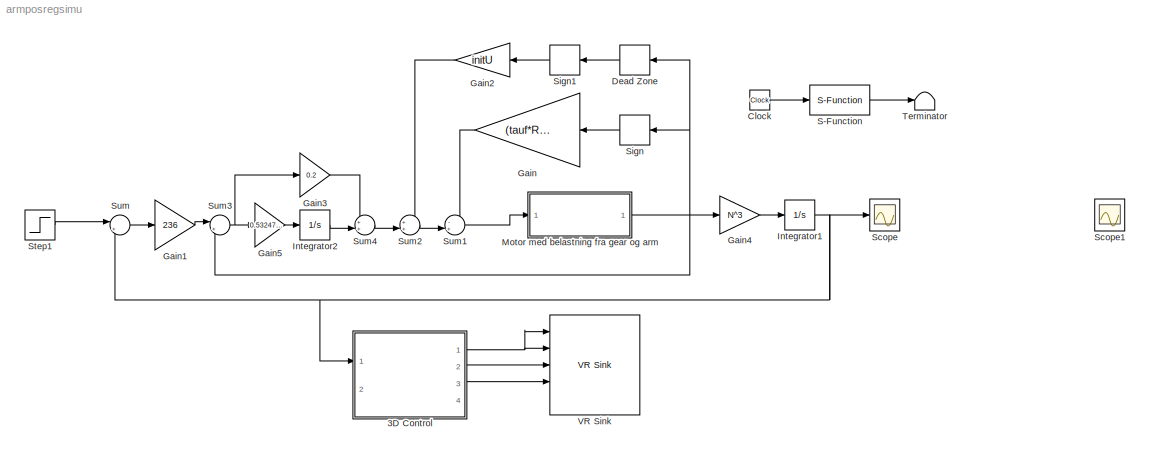
MODEL armposregsimu
KIND model
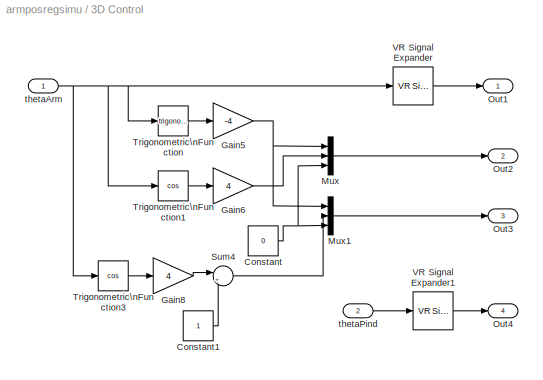
BLOCK [SubSystem] 3D Control
  FunctionWithSeparateData = off
  MaskHideContents = off
  MinAlgLoopOccurrences = off
  Opaque = off
  Ports = [2, 4]
  PropExecContextOutsideSubsystem = off
  RTWSystemCode = Auto
  RequestExecContextInheritance = off
  SID = 1
BLOCK [Constant] 3D Control/Constant
  OutDataType = fixdt(1, 16)
  OutScaling = 2^0
  SID = 4
  Value = 0
BLOCK [Constant] 3D Control/Constant1
  OutDataType = fixdt(1, 16)
  OutScaling = 2^0
  SID = 5
BLOCK [Gain] 3D Control/Gain5
  Gain = -4
  OutDataType = fixdt(1, 16)
  OutDataTypeMode = Inherit via internal rule
  OutDataTypeStr = Inherit: Inherit via internal rule
  OutScaling = 2^0
  ParamDataTypeStr = Inherit: Inherit via internal rule
  ParameterDataType = fixdt(1, 16)
  ParameterDataTypeMode = Inherit via internal rule
  ParameterScaling = 2^0
  SID = 6
  SaturateOnIntegerOverflow = off
BLOCK [Gain] 3D Control/Gain6
  Gain = 4
  OutDataType = fixdt(1, 16)
  OutDataTypeMode = Inherit via internal rule
  OutDataTypeStr = Inherit: Inherit via internal rule
  OutScaling = 2^0
  ParamDataTypeStr = Inherit: Inherit via internal rule
  ParameterDataType = fixdt(1, 16)
  ParameterDataTypeMode = Inherit via internal rule
  ParameterScaling = 2^0
  SID = 7
  SaturateOnIntegerOverflow = off
BLOCK [Gain] 3D Control/Gain8
  Gain = 4
  OutDataType = fixdt(1, 16)
  OutDataTypeMode = Inherit via internal rule
  OutDataTypeStr = Inherit: Inherit via internal rule
  OutScaling = 2^0
  ParamDataTypeStr = Inherit: Inherit via internal rule
  ParameterDataType = fixdt(1, 16)
  ParameterDataTypeMode = Inherit via internal rule
  ParameterScaling = 2^0
  SID = 8
  SaturateOnIntegerOverflow = off
BLOCK [Mux] 3D Control/Mux
  DisplayOption = bar
  Inputs = 3
  Ports = [3, 1]
  SID = 9
BLOCK [Mux] 3D Control/Mux1
  DisplayOption = bar
  Inputs = 3
  Ports = [3, 1]
  SID = 10
BLOCK [Outport] 3D Control/Out1
  IconDisplay = Port number
  OutDataType = fixdt(1, 16)
  OutScaling = 2^0
  SID = 17
BLOCK [Outport] 3D Control/Out2
  IconDisplay = Port number
  OutDataType = fixdt(1, 16)
  OutScaling = 2^0
  Port = 2
  SID = 18
BLOCK [Outport] 3D Control/Out3
  IconDisplay = Port number
  OutDataType = fixdt(1, 16)
  OutScaling = 2^0
  Port = 3
  SID = 19
BLOCK [Outport] 3D Control/Out4
  IconDisplay = Port number
  OutDataType = fixdt(1, 16)
  OutScaling = 2^0
  Port = 4
  SID = 20
BLOCK [Sum] 3D Control/Sum4
  IconShape = round
  InputSameDT = off
  Inputs = |+-
  OutDataType = fixdt(1, 16)
  OutDataTypeMode = Inherit via internal rule
  OutDataTypeStr = Inherit: Inherit via internal rule
  OutScaling = 2^0
  Ports = [2, 1]
  SID = 11
  SaturateOnIntegerOverflow = off
BLOCK [Trigonometry] 3D Control/Trigonometric\nFunction
  Ports = [1, 1]
  SID = 12
BLOCK [Trigonometry] 3D Control/Trigonometric\nFunction1
  Operator = cos
  Ports = [1, 1]
  SID = 13
BLOCK [Trigonometry] 3D Control/Trigonometric\nFunction3
  Operator = cos
  Ports = [1, 1]
  SID = 14
BLOCK [Reference] 3D Control/VR Signal Expander  REF=vrlib/VR Signal Expander
  FunctionWithSeparateData = off
  Ports = [1, 1]
  RTWMemSecDataConstants = Inherit from model
  RTWMemSecDataInternal = Inherit from model
  RTWMemSecDataParameters = Inherit from model
  RTWMemSecFuncExecute = Inherit from model
  RTWMemSecFuncInitTerm = Inherit from model
  SID = 15
  ShowPortLabels = FromPortIcon
  SourceBlock = vrlib/VR Signal Expander
  SourceType = VR Signal Expander
  SystemSampleTime = -1
  outidx = [4]
  outwidth = 4
BLOCK [Reference] 3D Control/VR Signal Expander1  REF=vrlib/VR Signal Expander
  FunctionWithSeparateData = off
  Ports = [1, 1]
  RTWMemSecDataConstants = Inherit from model
  RTWMemSecDataInternal = Inherit from model
  RTWMemSecDataParameters = Inherit from model
  RTWMemSecFuncExecute = Inherit from model
  RTWMemSecFuncInitTerm = Inherit from model
  SID = 16
  ShowPortLabels = FromPortIcon
  SourceBlock = vrlib/VR Signal Expander
  SourceType = VR Signal Expander
  SystemSampleTime = -1
  outidx = [4]
  outwidth = 4
BLOCK [Inport] 3D Control/thetaArm
  IconDisplay = Port number
  OutDataType = fixdt(1, 16)
  OutScaling = 2^0
  SID = 2
BLOCK [Inport] 3D Control/thetaPind
  IconDisplay = Port number
  OutDataType = fixdt(1, 16)
  OutScaling = 2^0
  Port = 2
  SID = 3
BLOCK [Clock] Clock
  Decimation = 10
  SID = 21
BLOCK [DeadZone] Dead Zone
  LowerValue = -0.1
  SID = 22
  UpperValue = 0.1
BLOCK [Gain] Gain
  Gain = (tauf*Rm)/Km
  OutDataType = fixdt(1, 16)
  OutDataTypeMode = Inherit via internal rule
  OutDataTypeStr = Inherit: Inherit via internal rule
  OutScaling = 2^0
  ParamDataTypeStr = Inherit: Inherit via internal rule
  ParameterDataType = fixdt(1, 16)
  ParameterDataTypeMode = Inherit via internal rule
  ParameterScaling = 2^0
  SID = 23
  SaturateOnIntegerOverflow = off
BLOCK [Gain] Gain1
  Gain = 236
  OutDataType = fixdt(1, 16)
  OutDataTypeMode = Inherit via internal rule
  OutDataTypeStr = Inherit: Inherit via internal rule
  OutScaling = 2^0
  ParamDataTypeStr = Inherit: Inherit via internal rule
  ParameterDataType = fixdt(1, 16)
  ParameterDataTypeMode = Inherit via internal rule
  ParameterScaling = 2^0
  SID = 24
  SaturateOnIntegerOverflow = off
BLOCK [Gain] Gain2
  Gain = initU
  OutDataType = fixdt(1, 16)
  OutDataTypeMode = Inherit via internal rule
  OutDataTypeStr = Inherit: Inherit via internal rule
  OutScaling = 2^0
  ParamDataTypeStr = Inherit: Inherit via internal rule
  ParameterDataType = fixdt(1, 16)
  ParameterDataTypeMode = Inherit via internal rule
  ParameterScaling = 2^0
  SID = 25
  SaturateOnIntegerOverflow = off
BLOCK [Gain] Gain3
  Gain = 0.2
  OutDataType = fixdt(1, 16)
  OutDataTypeMode = Inherit via internal rule
  OutDataTypeStr = Inherit: Inherit via internal rule
  OutScaling = 2^0
  ParamDataTypeStr = Inherit: Inherit via internal rule
  ParameterDataType = fixdt(1, 16)
  ParameterDataTypeMode = Inherit via internal rule
  ParameterScaling = 2^0
  SID = 26
  SaturateOnIntegerOverflow = off
BLOCK [Gain] Gain4
  Gain = N^3
  OutDataType = fixdt(1, 16)
  OutDataTypeMode = Inherit via internal rule
  OutDataTypeStr = Inherit: Inherit via internal rule
  OutScaling = 2^0
  ParamDataTypeStr = Inherit: Inherit via internal rule
  ParameterDataType = fixdt(1, 16)
  ParameterDataTypeMode = Inherit via internal rule
  ParameterScaling = 2^0
  SID = 27
  SaturateOnIntegerOverflow = off
BLOCK [Gain] Gain5
  Gain = 0.5324799618
  OutDataType = fixdt(1, 16)
  OutDataTypeMode = Inherit via internal rule
  OutDataTypeStr = Inherit: Inherit via internal rule
  OutScaling = 2^0
  ParamDataTypeStr = Inherit: Inherit via internal rule
  ParameterDataType = fixdt(1, 16)
  ParameterDataTypeMode = Inherit via internal rule
  ParameterScaling = 2^0
  SID = 62
  SaturateOnIntegerOverflow = off
BLOCK [Integrator] Integrator1
  Ports = [1, 1]
  SID = 28
BLOCK [Integrator] Integrator2
  Ports = [1, 1]
  SID = 61
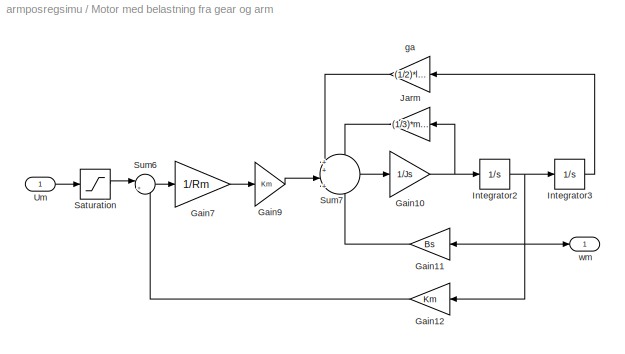
BLOCK [SubSystem] Motor med belastning fra gear og arm
  FunctionWithSeparateData = off
  MaskHideContents = off
  MinAlgLoopOccurrences = off
  Opaque = off
  Ports = [1, 1]
  PropExecContextOutsideSubsystem = off
  RTWSystemCode = Auto
  RequestExecContextInheritance = off
  SID = 29
BLOCK [Gain] Motor med belastning fra gear og arm/Gain10
  Gain = 1/Js
  OutDataType = fixdt(1, 16)
  OutDataTypeMode = Inherit via internal rule
  OutDataTypeStr = Inherit: Inherit via internal rule
  OutScaling = 2^0
  ParamDataTypeStr = Inherit: Inherit via internal rule
  ParameterDataType = fixdt(1, 16)
  ParameterDataTypeMode = Inherit via internal rule
  ParameterScaling = 2^0
  SID = 31
  SaturateOnIntegerOverflow = off
BLOCK [Gain] Motor med belastning fra gear og arm/Gain11
  Gain = Bs
  OutDataType = fixdt(1, 16)
  OutDataTypeMode = Inherit via internal rule
  OutDataTypeStr = Inherit: Inherit via internal rule
  OutScaling = 2^0
  ParamDataTypeStr = Inherit: Inherit via internal rule
  ParameterDataType = fixdt(1, 16)
  ParameterDataTypeMode = Inherit via internal rule
  ParameterScaling = 2^0
  SID = 32
  SaturateOnIntegerOverflow = off
BLOCK [Gain] Motor med belastning fra gear og arm/Gain12
  Gain = Km
  OutDataType = fixdt(1, 16)
  OutDataTypeMode = Inherit via internal rule
  OutDataTypeStr = Inherit: Inherit via internal rule
  OutScaling = 2^0
  ParamDataTypeStr = Inherit: Inherit via internal rule
  ParameterDataType = fixdt(1, 16)
  ParameterDataTypeMode = Inherit via internal rule
  ParameterScaling = 2^0
  SID = 33
  SaturateOnIntegerOverflow = off
BLOCK [Gain] Motor med belastning fra gear og arm/Gain7
  Gain = 1/Rm
  OutDataType = fixdt(1, 16)
  OutDataTypeMode = Inherit via internal rule
  OutDataTypeStr = Inherit: Inherit via internal rule
  OutScaling = 2^0
  ParamDataTypeStr = Inherit: Inherit via internal rule
  ParameterDataType = fixdt(1, 16)
  ParameterDataTypeMode = Inherit via internal rule
  ParameterScaling = 2^0
  SID = 34
  SaturateOnIntegerOverflow = off
BLOCK [Gain] Motor med belastning fra gear og arm/Gain9
  Gain = Km
  OutDataType = fixdt(1, 16)
  OutDataTypeMode = Inherit via internal rule
  OutDataTypeStr = Inherit: Inherit via internal rule
  OutScaling = 2^0
  ParamDataTypeStr = Inherit: Inherit via internal rule
  ParameterDataType = fixdt(1, 16)
  ParameterDataTypeMode = Inherit via internal rule
  ParameterScaling = 2^0
  SID = 35
  SaturateOnIntegerOverflow = off
BLOCK [Integrator] Motor med belastning fra gear og arm/Integrator2
  Ports = [1, 1]
  SID = 36
BLOCK [Integrator] Motor med belastning fra gear og arm/Integrator3
  Ports = [1, 1]
  SID = 37
BLOCK [Gain] Motor med belastning fra gear og arm/Jarm
  Gain = (1/3)*ma*la^2*N^6
  OutDataType = fixdt(1, 16)
  OutDataTypeMode = Inherit via internal rule
  OutDataTypeStr = Inherit: Inherit via internal rule
  OutScaling = 2^0
  ParamDataTypeStr = Inherit: Inherit via internal rule
  ParameterDataType = fixdt(1, 16)
  ParameterDataTypeMode = Inherit via internal rule
  ParameterScaling = 2^0
  SID = 38
  SaturateOnIntegerOverflow = off
BLOCK [Saturate] Motor med belastning fra gear og arm/Saturation
  LowerLimit = -13
  OutDataType = fixdt(1, 16)
  OutScaling = 2^0
  SID = 39
  UpperLimit = 13
BLOCK [Sum] Motor med belastning fra gear og arm/Sum6
  IconShape = round
  InputSameDT = off
  Inputs = |+-
  OutDataType = fixdt(1, 16)
  OutDataTypeMode = Inherit via internal rule
  OutDataTypeStr = Inherit: Inherit via internal rule
  OutScaling = 2^0
  Ports = [2, 1]
  SID = 40
  SaturateOnIntegerOverflow = off
BLOCK [Sum] Motor med belastning fra gear og arm/Sum7
  IconShape = round
  InputSameDT = off
  Inputs = ++|+|-
  OutDataType = fixdt(1, 16)
  OutDataTypeMode = Inherit via internal rule
  OutDataTypeStr = Inherit: Inherit via internal rule
  OutScaling = 2^0
  Ports = [4, 1]
  SID = 41
  SaturateOnIntegerOverflow = off
BLOCK [Inport] Motor med belastning fra gear og arm/Um
  IconDisplay = Port number
  OutDataType = fixdt(1, 16)
  OutScaling = 2^0
  SID = 30
BLOCK [Gain] Motor med belastning fra gear og arm/ga
  Gain = (1/2)*la*ma*g*N^6
  OutDataType = fixdt(1, 16)
  OutDataTypeMode = Inherit via internal rule
  OutDataTypeStr = Inherit: Inherit via internal rule
  OutScaling = 2^0
  ParamDataTypeStr = Inherit: Inherit via internal rule
  ParameterDataType = fixdt(1, 16)
  ParameterDataTypeMode = Inherit via internal rule
  ParameterScaling = 2^0
  SID = 42
  SaturateOnIntegerOverflow = off
BLOCK [Outport] Motor med belastning fra gear og arm/wm
  IconDisplay = Port number
  OutDataType = fixdt(1, 16)
  OutScaling = 2^0
  SID = 43
BLOCK [S-Function] S-Function
  EnableBusSupport = off
  FunctionName = sfun_time
  Ports = [1, 1]
  SID = 45
BLOCK [Scope] Scope
  DataFormat = StructureWithTime
  Floating = off
  NumInputPorts = 1
  Ports = [1]
  SID = 46
  SampleTime = 0
  YMax = 0.85
  YMin = 0
BLOCK [Scope] Scope1
  DataFormat = StructureWithTime
  Floating = off
  NumInputPorts = 1
  Ports = [1]
  SID = 47
  SampleTime = 0
  SaveName = ScopeData1
  YMax = 0.45
  YMin = -0.4
BLOCK [Signum] Sign
  SID = 48
  SampleTime = 0.01
BLOCK [Signum] Sign1
  SID = 49
BLOCK [Step] Step1
  After = pi/4
  SID = 50
  SampleTime = 0
BLOCK [Sum] Sum
  IconShape = round
  InputSameDT = off
  Inputs = |+-
  OutDataType = fixdt(1, 16)
  OutDataTypeMode = Inherit via internal rule
  OutDataTypeStr = Inherit: Inherit via internal rule
  OutScaling = 2^0
  Ports = [2, 1]
  SID = 51
  SaturateOnIntegerOverflow = off
BLOCK [Sum] Sum1
  IconShape = round
  InputSameDT = off
  Inputs = -+|
  OutDataType = fixdt(1, 16)
  OutDataTypeMode = Inherit via internal rule
  OutDataTypeStr = Inherit: Inherit via internal rule
  OutScaling = 2^0
  Ports = [2, 1]
  SID = 52
  SaturateOnIntegerOverflow = off
BLOCK [Sum] Sum2
  IconShape = round
  InputSameDT = off
  Inputs = ++|
  OutDataType = fixdt(1, 16)
  OutDataTypeMode = Inherit via internal rule
  OutDataTypeStr = Inherit: Inherit via internal rule
  OutScaling = 2^0
  Ports = [2, 1]
  SID = 53
  SaturateOnIntegerOverflow = off
BLOCK [Sum] Sum3
  IconShape = round
  InputSameDT = off
  Inputs = |+-
  OutDataType = fixdt(1, 16)
  OutDataTypeMode = Inherit via internal rule
  OutDataTypeStr = Inherit: Inherit via internal rule
  OutScaling = 2^0
  Ports = [2, 1]
  SID = 54
  SaturateOnIntegerOverflow = off
BLOCK [Sum] Sum4
  IconShape = round
  InputSameDT = off
  Inputs = ++|
  OutDataType = fixdt(1, 16)
  OutDataTypeMode = Inherit via internal rule
  OutDataTypeStr = Inherit: Inherit via internal rule
  OutScaling = 2^0
  Ports = [2, 1]
  SID = 60
  SaturateOnIntegerOverflow = off
BLOCK [Terminator] Terminator
  SID = 57
BLOCK [Reference] VR Sink  REF=vrlib/VR Sink
  AutoView = off
  FieldsWritten = Ball.rotation.4.1.double#Arm.rotation.4.1.double#Pind.translation.3.1.double#AP.translation.3.1.double#Pind.rotation.4.1.double
  InstantiateOnLoad = on
  Ports = [5]
  RemoteChange = off
  RemoteView = on
  SID = 59
  SampleTime = 0.02
  SourceBlock = vrlib/VR Sink
  SourceType = Virtual Reality Sink
  VideoDimensions = []
  ViewEnable = on
  WorldFileName = VRML1.WRL
LINE 3D Control/Constant1:1 -> 3D Control/Sum4:2
NET 3D Control/Constant:1 -> 3D Control/Mux1:3, 3D Control/Mux:3
NET 3D Control/Gain5:1 -> 3D Control/Mux1:1, 3D Control/Mux:1
LINE 3D Control/Gain6:1 -> 3D Control/Mux:2
LINE 3D Control/Gain8:1 -> 3D Control/Sum4:1
LINE 3D Control/Mux1:1 -> 3D Control/Out3:1
LINE 3D Control/Mux:1 -> 3D Control/Out2:1
LINE 3D Control/Sum4:1 -> 3D Control/Mux1:2
LINE 3D Control/Trigonometric\nFunction1:1 -> 3D Control/Gain6:1
LINE 3D Control/Trigonometric\nFunction3:1 -> 3D Control/Gain8:1
LINE 3D Control/Trigonometric\nFunction:1 -> 3D Control/Gain5:1
LINE 3D Control/VR Signal Expander1:1 -> 3D Control/Out4:1
LINE 3D Control/VR Signal Expander:1 -> 3D Control/Out1:1
NET 3D Control/thetaArm:1 -> 3D Control/Trigonometric\nFunction1:1, 3D Control/Trigonometric\nFunction3:1, 3D Control/Trigonometric\nFunction:1, 3D Control/VR Signal Expander:1
LINE 3D Control/thetaPind:1 -> 3D Control/VR Signal Expander1:1
NET 3D Control:1 -> VR Sink:1, VR Sink:2
LINE 3D Control:2 -> VR Sink:3
LINE 3D Control:3 -> VR Sink:4
LINE Clock:1 -> S-Function:1
LINE Dead Zone:1 -> Sign1:1
LINE Gain1:1 -> Sum3:1
LINE Gain2:1 -> Sum2:1
LINE Gain3:1 -> Sum4:1
LINE Gain4:1 -> Integrator1:1
LINE Gain5:1 -> Integrator2:1
LINE Gain:1 -> Sum1:1
NET Integrator1:1 -> 3D Control:1, Scope:1, Sum:2
LINE Integrator2:1 -> Sum4:2
NET Motor med belastning fra gear og arm/Gain10:1 -> Motor med belastning fra gear og arm/Integrator2:1, Motor med belastning fra gear og arm/Jarm:1
LINE Motor med belastning fra gear og arm/Gain11:1 -> Motor med belastning fra gear og arm/Sum7:4
LINE Motor med belastning fra gear og arm/Gain12:1 -> Motor med belastning fra gear og arm/Sum6:2
LINE Motor med belastning fra gear og arm/Gain7:1 -> Motor med belastning fra gear og arm/Gain9:1
LINE Motor med belastning fra gear og arm/Gain9:1 -> Motor med belastning fra gear og arm/Sum7:3
NET Motor med belastning fra gear og arm/Integrator2:1 -> Motor med belastning fra gear og arm/Gain11:1, Motor med belastning fra gear og arm/Gain12:1, Motor med belastning fra gear og arm/Integrator3:1, Motor med belastning fra gear og arm/wm:1
LINE Motor med belastning fra gear og arm/Integrator3:1 -> Motor med belastning fra gear og arm/ga:1
LINE Motor med belastning fra gear og arm/Jarm:1 -> Motor med belastning fra gear og arm/Sum7:1
LINE Motor med belastning fra gear og arm/Saturation:1 -> Motor med belastning fra gear og arm/Sum6:1
LINE Motor med belastning fra gear og arm/Sum6:1 -> Motor med belastning fra gear og arm/Gain7:1
LINE Motor med belastning fra gear og arm/Sum7:1 -> Motor med belastning fra gear og arm/Gain10:1
LINE Motor med belastning fra gear og arm/Um:1 -> Motor med belastning fra gear og arm/Saturation:1
LINE Motor med belastning fra gear og arm/ga:1 -> Motor med belastning fra gear og arm/Sum7:2
NET Motor med belastning fra gear og arm:1 -> Dead Zone:1, Gain4:1, Sign:1, Sum3:2
LINE S-Function:1 -> Terminator:1
LINE Sign1:1 -> Gain2:1
LINE Sign:1 -> Gain:1
LINE Step1:1 -> Sum:1
LINE Sum1:1 -> Motor med belastning fra gear og arm:1
LINE Sum2:1 -> Sum1:2
NET Sum3:1 -> Gain3:1, Gain5:1
LINE Sum4:1 -> Sum2:2
LINE Sum:1 -> Gain1:1
note: NET lines group one-source signal fan-out (src -> all destinations, sorted); 1:1 wires keep LINE
